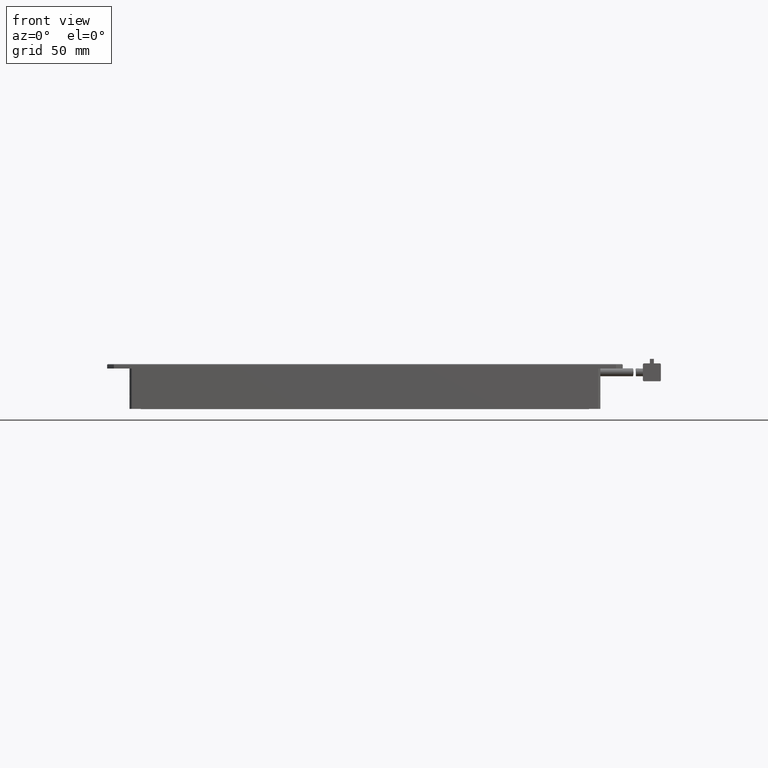
[diagram: clean part render]
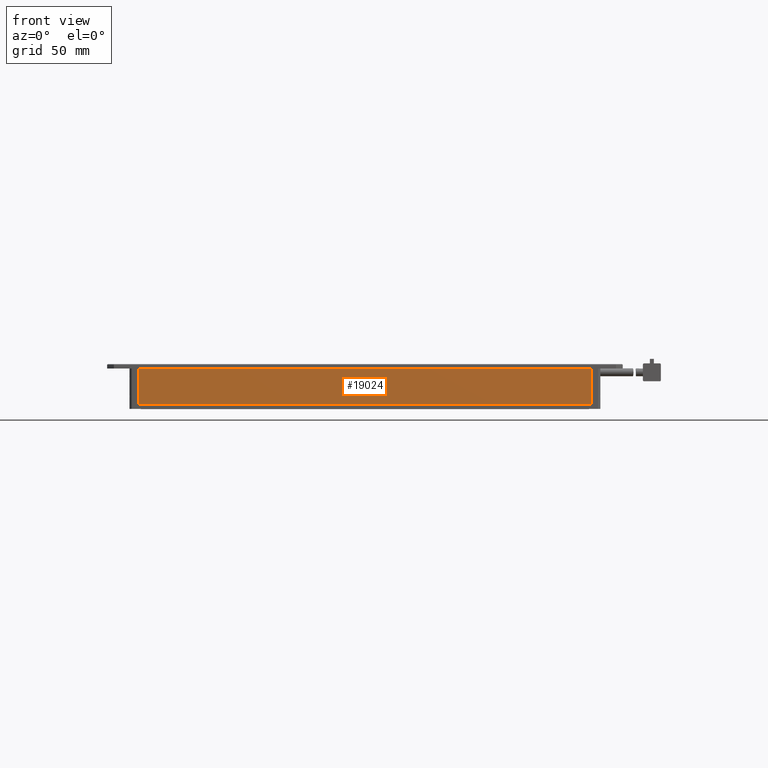
[diagram: same view with one face highlighted and labeled with its STEP entity id]
A machine part, front view. The second image highlights one B-rep face of the part: STEP entity #19024.
In plain terms, the highlighted planar face has unit normal (-0, 1, 0).
Its self-contained STEP definition (entity closure, byte-faithful):
#682 = LINE ( 'NONE', #19502, #9943 ) ;
#1027 = DIRECTION ( 'NONE',  ( -1.000000000000000000, -1.243375699538492300E-016, -1.243375699538492300E-016 ) ) ;
#1707 = LINE ( 'NONE', #12438, #6357 ) ;
#1919 = DIRECTION ( 'NONE',  ( 1.243375699538492300E-016, 1.545983130202835100E-032, -1.000000000000000000 ) ) ;
#2951 = ORIENTED_EDGE ( 'NONE', *, *, #21261, .F. ) ;
#2988 = VERTEX_POINT ( 'NONE', #11076 ) ;
#3202 = ORIENTED_EDGE ( 'NONE', *, *, #16960, .F. ) ;
#4637 = VECTOR ( 'NONE', #1027, 1000.000000000000000 ) ;
#5255 = VERTEX_POINT ( 'NONE', #8901 ) ;
#6357 = VECTOR ( 'NONE', #1919, 1000.000000000000000 ) ;
#6510 = EDGE_LOOP ( 'NONE', ( #13029, #2951, #3202, #18993 ) ) ;
#6988 = VERTEX_POINT ( 'NONE', #9069 ) ;
#7199 = VECTOR ( 'NONE', #7293, 1000.000000000000000 ) ;
#7293 = DIRECTION ( 'NONE',  ( 1.000000000000000000, 1.243375699538492300E-016, 1.243375699538492300E-016 ) ) ;
#7431 = CARTESIAN_POINT ( 'NONE',  ( 18.66575058247614600, -139.3787539827808400, -8.000000000023650400 ) ) ;
#8233 = AXIS2_PLACEMENT_3D ( 'NONE', #7431, #19497, #9147 ) ;
#8901 = CARTESIAN_POINT ( 'NONE',  ( -82.48424941752384100, -139.3787539827808400, -2.364775042451583400E-011 ) ) ;
#9069 = CARTESIAN_POINT ( 'NONE',  ( 119.8157505824761700, -139.3787539827808400, -16.00000000002364700 ) ) ;
#9073 = PLANE ( 'NONE',  #8233 ) ;
#9147 = DIRECTION ( 'NONE',  ( 1.000000000000000000, 1.243375699538492300E-016, 1.243375699538492300E-016 ) ) ;
#9553 = VERTEX_POINT ( 'NONE', #21031 ) ;
#9616 = EDGE_CURVE ( 'NONE', #9553, #5255, #682, .T. ) ;
#9943 = VECTOR ( 'NONE', #12689, 1000.000000000000000 ) ;
#10803 = FACE_OUTER_BOUND ( 'NONE', #6510, .T. ) ;
#11076 = CARTESIAN_POINT ( 'NONE',  ( 119.8157505824761700, -139.3787539827808400, -2.364081153061192700E-011 ) ) ;
#12438 = CARTESIAN_POINT ( 'NONE',  ( 119.8157505824761700, -139.3787539827808400, -8.000000000023638000 ) ) ;
#12689 = DIRECTION ( 'NONE',  ( -1.243375699538492300E-016, -1.545983130202835100E-032, 1.000000000000000000 ) ) ;
#13029 = ORIENTED_EDGE ( 'NONE', *, *, #14822, .F. ) ;
#13880 = LINE ( 'NONE', #21792, #4637 ) ;
#14822 = EDGE_CURVE ( 'NONE', #6988, #9553, #13880, .T. ) ;
#16960 = EDGE_CURVE ( 'NONE', #5255, #2988, #20975, .T. ) ;
#18993 = ORIENTED_EDGE ( 'NONE', *, *, #9616, .F. ) ;
#19024 = ADVANCED_FACE ( 'NONE', ( #10803 ), #9073, .F. ) ;
#19497 = DIRECTION ( 'NONE',  ( -1.243375699538492300E-016, 1.000000000000000000, 0.0000000000000000000 ) ) ;
#19502 = CARTESIAN_POINT ( 'NONE',  ( -82.48424941752384100, -139.3787539827808400, -8.000000000023661100 ) ) ;
#20975 = LINE ( 'NONE', #21188, #7199 ) ;
#21031 = CARTESIAN_POINT ( 'NONE',  ( -82.48424941752384100, -139.3787539827808400, -16.00000000002365400 ) ) ;
#21188 = CARTESIAN_POINT ( 'NONE',  ( 18.66575058247614600, -139.3787539827808400, -2.363560736018399700E-011 ) ) ;
#21261 = EDGE_CURVE ( 'NONE', #2988, #6988, #1707, .T. ) ;
#21792 = CARTESIAN_POINT ( 'NONE',  ( 18.66575058247614600, -139.3787539827808400, -16.00000000002366100 ) ) ;